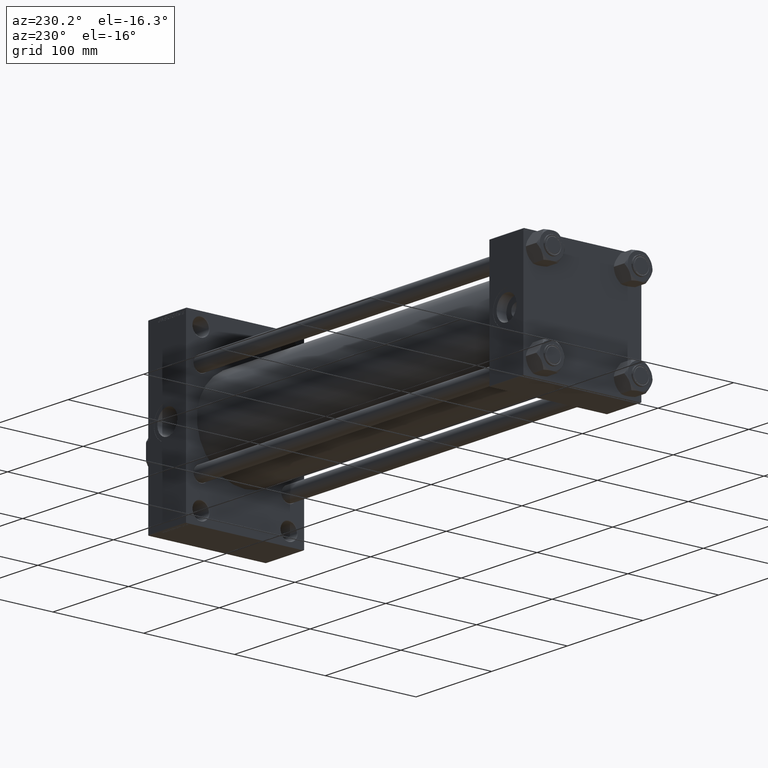
[diagram: clean part render]
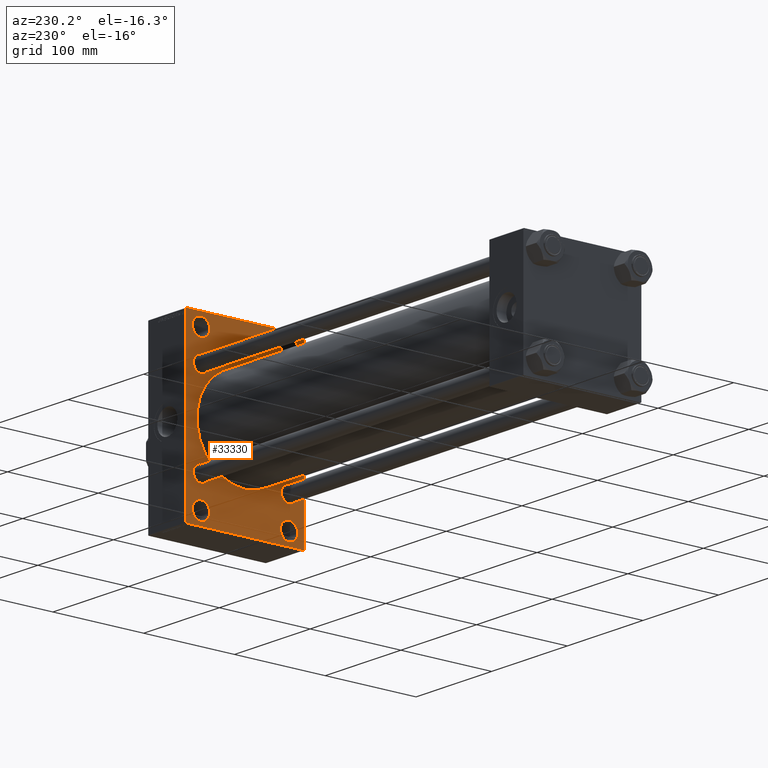
[diagram: same view with one face highlighted and labeled with its STEP entity id]
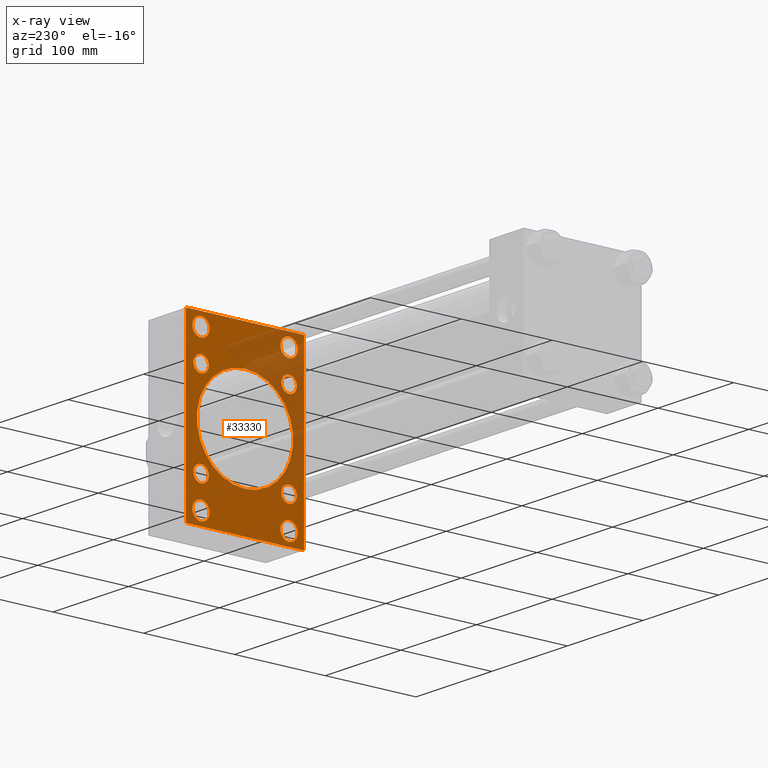
[diagram: x-ray of the same camera — body ghosted, the highlighted face saturated]
A machine part, auxiliary view. The second image highlights one B-rep face of the part: STEP entity #33330.
The next image is the same camera in x-ray: the body ghosted, the highlighted face saturated — about 27% of this face is hidden behind the body in this view.
In plain terms, the highlighted planar face has unit normal (-1, 0, 0).
Its self-contained STEP definition (entity closure, byte-faithful):
#363 = CIRCLE ( 'NONE', #31690, 8.500000000000007105 ) ;
#377 = CARTESIAN_POINT ( 'NONE',  ( 446.0000000000000000, -48.49999999999999289, -81.00000000000001421 ) ) ;
#555 = CARTESIAN_POINT ( 'NONE',  ( 446.0000000000000000, -48.49999999999999289, -71.50000000000001421 ) ) ;
#974 = LINE ( 'NONE', #47308, #1864 ) ;
#1215 = CARTESIAN_POINT ( 'NONE',  ( 446.0000000000000000, 64.99999999999998579, -95.00000000000001421 ) ) ;
#1239 = EDGE_LOOP ( 'NONE', ( #29864, #12027 ) ) ;
#1539 = VECTOR ( 'NONE', #22123, 1000.000000000000114 ) ;
#1543 = CIRCLE ( 'NONE', #44139, 8.500000000000007105 ) ;
#1642 = AXIS2_PLACEMENT_3D ( 'NONE', #22928, #12330, #27689 ) ;
#1864 = VECTOR ( 'NONE', #20335, 1000.000000000000000 ) ;
#1974 = VECTOR ( 'NONE', #21335, 999.9999999999998863 ) ;
#3095 = CARTESIAN_POINT ( 'NONE',  ( 446.0000000000000000, 48.45000000000000995, 48.45000000000001705 ) ) ;
#3371 = VERTEX_POINT ( 'NONE', #44056 ) ;
#3556 = CIRCLE ( 'NONE', #9980, 8.500000000000007105 ) ;
#3843 = DIRECTION ( 'NONE',  ( 0.000000000000000000, 0.000000000000000000, 1.000000000000000000 ) ) ;
#3962 = DIRECTION ( 'NONE',  ( -0.000000000000000000, 0.7071067811865376918, 0.7071067811865574537 ) ) ;
#4080 = ORIENTED_EDGE ( 'NONE', *, *, #13933, .T. ) ;
#4087 = DIRECTION ( 'NONE',  ( 1.000000000000000000, -0.000000000000000000, 0.000000000000000000 ) ) ;
#4114 = ORIENTED_EDGE ( 'NONE', *, *, #22924, .T. ) ;
#4131 = DIRECTION ( 'NONE',  ( -1.000000000000000000, 0.000000000000000000, -0.000000000000000000 ) ) ;
#4143 = EDGE_LOOP ( 'NONE', ( #32572, #20242 ) ) ;
#5193 = DIRECTION ( 'NONE',  ( 1.000000000000000000, -0.000000000000000000, 0.000000000000000000 ) ) ;
#5267 = EDGE_LOOP ( 'NONE', ( #30602, #32995 ) ) ;
#5311 = CARTESIAN_POINT ( 'NONE',  ( 446.0000000000000000, 48.45000000000000995, -48.45000000000001705 ) ) ;
#5450 = DIRECTION ( 'NONE',  ( 1.000000000000000000, -0.000000000000000000, 0.000000000000000000 ) ) ;
#5559 = DIRECTION ( 'NONE',  ( 1.000000000000000000, -0.000000000000000000, 0.000000000000000000 ) ) ;
#5606 = DIRECTION ( 'NONE',  ( 1.000000000000000000, -0.000000000000000000, 0.000000000000000000 ) ) ;
#5916 = DIRECTION ( 'NONE',  ( 0.000000000000000000, -0.7071067811865474617, 0.7071067811865474617 ) ) ;
#5952 = ORIENTED_EDGE ( 'NONE', *, *, #32010, .T. ) ;
#6209 = ORIENTED_EDGE ( 'NONE', *, *, #17293, .T. ) ;
#6383 = DIRECTION ( 'NONE',  ( 0.000000000000000000, 0.000000000000000000, -1.000000000000000000 ) ) ;
#6403 = CARTESIAN_POINT ( 'NONE',  ( 446.0000000000000000, 48.50000000000000711, -90.50000000000002842 ) ) ;
#6409 = EDGE_CURVE ( 'NONE', #36472, #10438, #49278, .T. ) ;
#6695 = VERTEX_POINT ( 'NONE', #555 ) ;
#6754 = EDGE_CURVE ( 'NONE', #15942, #41523, #363, .T. ) ;
#6821 = EDGE_CURVE ( 'NONE', #48066, #22252, #3556, .T. ) ;
#6855 = CARTESIAN_POINT ( 'NONE',  ( 446.0000000000000000, 48.50000000000000711, 81.00000000000000000 ) ) ;
#7003 = EDGE_LOOP ( 'NONE', ( #22774, #20010 ) ) ;
#8236 = EDGE_LOOP ( 'NONE', ( #33536, #42073 ) ) ;
#8626 = CARTESIAN_POINT ( 'NONE',  ( 446.0000000000000000, 48.50000000000000711, 71.50000000000000000 ) ) ;
#8656 = CIRCLE ( 'NONE', #29567, 9.500000000000008882 ) ;
#9215 = DIRECTION ( 'NONE',  ( 0.000000000000000000, 0.000000000000000000, 1.000000000000000000 ) ) ;
#9254 = CARTESIAN_POINT ( 'NONE',  ( 446.0000000000000000, 48.45000000000000995, 39.95000000000000284 ) ) ;
#9676 = EDGE_CURVE ( 'NONE', #24340, #31278, #12250, .T. ) ;
#9876 = EDGE_CURVE ( 'NONE', #43199, #15162, #36660, .T. ) ;
#9980 = AXIS2_PLACEMENT_3D ( 'NONE', #5311, #32755, #13621 ) ;
#10046 = EDGE_CURVE ( 'NONE', #41334, #6695, #39867, .T. ) ;
#10096 = CIRCLE ( 'NONE', #18113, 9.500000000000008882 ) ;
#10438 = VERTEX_POINT ( 'NONE', #46072 ) ;
#11113 = CARTESIAN_POINT ( 'NONE',  ( 446.0000000000000000, -48.50000000000000000, 90.50000000000001421 ) ) ;
#11131 = EDGE_CURVE ( 'NONE', #39844, #3371, #13488, .T. ) ;
#11635 = DIRECTION ( 'NONE',  ( 1.000000000000000000, -0.000000000000000000, 0.000000000000000000 ) ) ;
#11694 = FACE_BOUND ( 'NONE', #5267, .T. ) ;
#12027 = ORIENTED_EDGE ( 'NONE', *, *, #10046, .T. ) ;
#12250 = LINE ( 'NONE', #46275, #45523 ) ;
#12330 = DIRECTION ( 'NONE',  ( 1.000000000000000000, -0.000000000000000000, 0.000000000000000000 ) ) ;
#12553 = EDGE_CURVE ( 'NONE', #44348, #36478, #37567, .T. ) ;
#13488 = LINE ( 'NONE', #17257, #27887 ) ;
#13549 = VECTOR ( 'NONE', #16571, 1000.000000000000000 ) ;
#13609 = EDGE_CURVE ( 'NONE', #26139, #27326, #27132, .T. ) ;
#13621 = DIRECTION ( 'NONE',  ( 0.000000000000000000, 0.000000000000000000, 1.000000000000000000 ) ) ;
#13854 = CARTESIAN_POINT ( 'NONE',  ( 446.0000000000000000, -48.44999999999999574, -39.95000000000001705 ) ) ;
#13933 = EDGE_CURVE ( 'NONE', #22252, #48066, #45671, .T. ) ;
#13984 = CIRCLE ( 'NONE', #36523, 8.500000000000007105 ) ;
#14275 = CARTESIAN_POINT ( 'NONE',  ( 446.0000000000000000, 64.99999999999997158, 94.99999999999997158 ) ) ;
#14753 = ORIENTED_EDGE ( 'NONE', *, *, #6821, .T. ) ;
#14782 = CARTESIAN_POINT ( 'NONE',  ( 446.0000000000000000, 79.74999999999913314, -79.75000000000135003 ) ) ;
#14872 = DIRECTION ( 'NONE',  ( 0.000000000000000000, 0.000000000000000000, 1.000000000000000000 ) ) ;
#14940 = ORIENTED_EDGE ( 'NONE', *, *, #6754, .T. ) ;
#14975 = EDGE_CURVE ( 'NONE', #31518, #38144, #44110, .T. ) ;
#15162 = VERTEX_POINT ( 'NONE', #9254 ) ;
#15253 = CARTESIAN_POINT ( 'NONE',  ( 446.0000000000000000, -64.50000000000007105, -95.00000000000002842 ) ) ;
#15255 = EDGE_CURVE ( 'NONE', #10438, #39844, #39491, .T. ) ;
#15444 = VECTOR ( 'NONE', #6383, 1000.000000000000000 ) ;
#15473 = DIRECTION ( 'NONE',  ( -0.000000000000000000, 0.000000000000000000, 1.000000000000000000 ) ) ;
#15942 = VERTEX_POINT ( 'NONE', #13854 ) ;
#15969 = FACE_BOUND ( 'NONE', #19917, .T. ) ;
#16039 = CARTESIAN_POINT ( 'NONE',  ( 446.0000000000000000, 64.99999999999998579, -94.50000000000008527 ) ) ;
#16121 = ORIENTED_EDGE ( 'NONE', *, *, #14975, .T. ) ;
#16571 = DIRECTION ( 'NONE',  ( 0.000000000000000000, -1.000000000000000000, -1.067522139062650425E-16 ) ) ;
#16679 = AXIS2_PLACEMENT_3D ( 'NONE', #26222, #21189, #21451 ) ;
#17257 = CARTESIAN_POINT ( 'NONE',  ( 446.0000000000000000, -79.75000000000004263, -79.75000000000004263 ) ) ;
#17293 = EDGE_CURVE ( 'NONE', #38144, #31518, #17532, .T. ) ;
#17532 = CIRCLE ( 'NONE', #45704, 9.500000000000008882 ) ;
#17862 = DIRECTION ( 'NONE',  ( 0.000000000000000000, 0.000000000000000000, 1.000000000000000000 ) ) ;
#18113 = AXIS2_PLACEMENT_3D ( 'NONE', #28510, #5606, #20954 ) ;
#18452 = DIRECTION ( 'NONE',  ( 0.000000000000000000, 0.000000000000000000, 1.000000000000000000 ) ) ;
#18992 = FACE_BOUND ( 'NONE', #45470, .T. ) ;
#19305 = CARTESIAN_POINT ( 'NONE',  ( 446.0000000000000000, -48.50000000000000000, 81.00000000000000000 ) ) ;
#19533 = ORIENTED_EDGE ( 'NONE', *, *, #24055, .T. ) ;
#19713 = EDGE_CURVE ( 'NONE', #24340, #3371, #40646, .T. ) ;
#19917 = EDGE_LOOP ( 'NONE', ( #6209, #16121 ) ) ;
#19991 = DIRECTION ( 'NONE',  ( 0.000000000000000000, 0.000000000000000000, 1.000000000000000000 ) ) ;
#20010 = ORIENTED_EDGE ( 'NONE', *, *, #47264, .T. ) ;
#20048 = CARTESIAN_POINT ( 'NONE',  ( 446.0000000000000000, -48.44999999999999574, 39.95000000000001705 ) ) ;
#20242 = ORIENTED_EDGE ( 'NONE', *, *, #49027, .T. ) ;
#20335 = DIRECTION ( 'NONE',  ( 0.000000000000000000, 7.304098846218135653E-17, -1.000000000000000000 ) ) ;
#20550 = EDGE_LOOP ( 'NONE', ( #14940, #19533 ) ) ;
#20655 = CARTESIAN_POINT ( 'NONE',  ( 446.0000000000000000, -48.44999999999999574, 48.45000000000003126 ) ) ;
#20954 = DIRECTION ( 'NONE',  ( 0.000000000000000000, 0.000000000000000000, 1.000000000000000000 ) ) ;
#21059 = VERTEX_POINT ( 'NONE', #6403 ) ;
#21189 = DIRECTION ( 'NONE',  ( 1.000000000000000000, 0.000000000000000000, 0.000000000000000000 ) ) ;
#21335 = DIRECTION ( 'NONE',  ( -0.000000000000000000, -0.7071067811865574537, -0.7071067811865376918 ) ) ;
#21438 = EDGE_CURVE ( 'NONE', #44505, #31278, #48280, .T. ) ;
#21451 = DIRECTION ( 'NONE',  ( 0.000000000000000000, 0.000000000000000000, -1.000000000000000000 ) ) ;
#21853 = DIRECTION ( 'NONE',  ( 1.000000000000000000, 0.000000000000000000, 0.000000000000000000 ) ) ;
#22070 = DIRECTION ( 'NONE',  ( 0.000000000000000000, -1.000000000000000000, 0.000000000000000000 ) ) ;
#22074 = VERTEX_POINT ( 'NONE', #29009 ) ;
#22123 = DIRECTION ( 'NONE',  ( 0.000000000000000000, 0.7071067811865474617, -0.7071067811865474617 ) ) ;
#22252 = VERTEX_POINT ( 'NONE', #22820 ) ;
#22429 = AXIS2_PLACEMENT_3D ( 'NONE', #38087, #42124, #3843 ) ;
#22494 = CARTESIAN_POINT ( 'NONE',  ( 446.0000000000000000, -65.00000000000001421, 94.99999999999997158 ) ) ;
#22774 = ORIENTED_EDGE ( 'NONE', *, *, #12553, .T. ) ;
#22820 = CARTESIAN_POINT ( 'NONE',  ( 446.0000000000000000, 48.45000000000000995, -39.95000000000000284 ) ) ;
#22924 = EDGE_CURVE ( 'NONE', #38214, #36472, #974, .T. ) ;
#22928 = CARTESIAN_POINT ( 'NONE',  ( 446.0000000000000000, 48.50000000000000711, -81.00000000000001421 ) ) ;
#23033 = CARTESIAN_POINT ( 'NONE',  ( 446.0000000000000000, 48.50000000000000711, -81.00000000000001421 ) ) ;
#23035 = DIRECTION ( 'NONE',  ( 0.000000000000000000, 0.000000000000000000, 1.000000000000000000 ) ) ;
#23065 = AXIS2_PLACEMENT_3D ( 'NONE', #42065, #37277, #14872 ) ;
#23426 = EDGE_LOOP ( 'NONE', ( #32168, #5952 ) ) ;
#23503 = FACE_BOUND ( 'NONE', #7003, .T. ) ;
#23932 = AXIS2_PLACEMENT_3D ( 'NONE', #48838, #44561, #17862 ) ;
#24055 = EDGE_CURVE ( 'NONE', #41523, #15942, #34088, .T. ) ;
#24340 = VERTEX_POINT ( 'NONE', #43660 ) ;
#24417 = CARTESIAN_POINT ( 'NONE',  ( 446.0000000000000000, -48.50000000000000000, 81.00000000000000000 ) ) ;
#25633 = DIRECTION ( 'NONE',  ( 0.000000000000000000, 0.000000000000000000, -1.000000000000000000 ) ) ;
#26091 = CARTESIAN_POINT ( 'NONE',  ( 446.0000000000000000, -2.602085213965210642E-15, 53.00000000000000711 ) ) ;
#26139 = VERTEX_POINT ( 'NONE', #26091 ) ;
#26222 = CARTESIAN_POINT ( 'NONE',  ( 446.0000000000000000, -2.602085213965210642E-15, 0.000000000000000000 ) ) ;
#26774 = VECTOR ( 'NONE', #22070, 1000.000000000000000 ) ;
#26988 = DIRECTION ( 'NONE',  ( 0.000000000000000000, 0.000000000000000000, 1.000000000000000000 ) ) ;
#27028 = ORIENTED_EDGE ( 'NONE', *, *, #21438, .F. ) ;
#27048 = FACE_BOUND ( 'NONE', #1239, .T. ) ;
#27132 = CIRCLE ( 'NONE', #16679, 53.00000000000000711 ) ;
#27326 = VERTEX_POINT ( 'NONE', #49720 ) ;
#27689 = DIRECTION ( 'NONE',  ( 0.000000000000000000, 0.000000000000000000, 1.000000000000000000 ) ) ;
#27728 = EDGE_CURVE ( 'NONE', #39127, #41158, #39873, .T. ) ;
#27887 = VECTOR ( 'NONE', #5916, 1000.000000000000114 ) ;
#28448 = DIRECTION ( 'NONE',  ( 0.000000000000000000, 0.000000000000000000, 1.000000000000000000 ) ) ;
#28510 = CARTESIAN_POINT ( 'NONE',  ( 446.0000000000000000, 48.50000000000000711, 81.00000000000000000 ) ) ;
#29009 = CARTESIAN_POINT ( 'NONE',  ( 446.0000000000000000, 48.50000000000000711, -71.50000000000001421 ) ) ;
#29567 = AXIS2_PLACEMENT_3D ( 'NONE', #23033, #39147, #19991 ) ;
#29577 = ORIENTED_EDGE ( 'NONE', *, *, #43100, .T. ) ;
#29678 = CIRCLE ( 'NONE', #22429, 9.500000000000008882 ) ;
#29864 = ORIENTED_EDGE ( 'NONE', *, *, #39297, .T. ) ;
#30088 = DIRECTION ( 'NONE',  ( 1.000000000000000000, -0.000000000000000000, 0.000000000000000000 ) ) ;
#30267 = DIRECTION ( 'NONE',  ( 0.000000000000000000, 0.000000000000000000, 1.000000000000000000 ) ) ;
#30382 = DIRECTION ( 'NONE',  ( 1.000000000000000000, -0.000000000000000000, 0.000000000000000000 ) ) ;
#30602 = ORIENTED_EDGE ( 'NONE', *, *, #42936, .T. ) ;
#30615 = CARTESIAN_POINT ( 'NONE',  ( 446.0000000000000000, -48.44999999999999574, 56.95000000000003837 ) ) ;
#30753 = DIRECTION ( 'NONE',  ( 1.000000000000000000, -0.000000000000000000, 0.000000000000000000 ) ) ;
#31278 = VERTEX_POINT ( 'NONE', #39234 ) ;
#31316 = PLANE ( 'NONE',  #40740 ) ;
#31518 = VERTEX_POINT ( 'NONE', #49265 ) ;
#31690 = AXIS2_PLACEMENT_3D ( 'NONE', #46140, #11635, #26988 ) ;
#31738 = AXIS2_PLACEMENT_3D ( 'NONE', #45800, #21853, #25633 ) ;
#31890 = CARTESIAN_POINT ( 'NONE',  ( 446.0000000000000000, -48.44999999999999574, -48.45000000000003126 ) ) ;
#31910 = EDGE_LOOP ( 'NONE', ( #44862, #42275, #35986, #49552, #27028, #29577, #4114, #35237 ) ) ;
#32010 = EDGE_CURVE ( 'NONE', #41158, #39127, #10096, .T. ) ;
#32168 = ORIENTED_EDGE ( 'NONE', *, *, #27728, .T. ) ;
#32572 = ORIENTED_EDGE ( 'NONE', *, *, #13609, .T. ) ;
#32599 = AXIS2_PLACEMENT_3D ( 'NONE', #6855, #30753, #30267 ) ;
#32755 = DIRECTION ( 'NONE',  ( 1.000000000000000000, -0.000000000000000000, 0.000000000000000000 ) ) ;
#32995 = ORIENTED_EDGE ( 'NONE', *, *, #36664, .T. ) ;
#33330 = ADVANCED_FACE ( 'NONE', ( #15969, #27048, #11694, #34607, #23503, #34845, #18992, #49466, #38866, #42169 ), #31316, .T. ) ;
#33536 = ORIENTED_EDGE ( 'NONE', *, *, #9876, .T. ) ;
#34088 = CIRCLE ( 'NONE', #34870, 8.500000000000007105 ) ;
#34607 = FACE_BOUND ( 'NONE', #23426, .T. ) ;
#34845 = FACE_BOUND ( 'NONE', #8236, .T. ) ;
#34870 = AXIS2_PLACEMENT_3D ( 'NONE', #31890, #5193, #43240 ) ;
#35040 = AXIS2_PLACEMENT_3D ( 'NONE', #377, #30088, #23035 ) ;
#35237 = ORIENTED_EDGE ( 'NONE', *, *, #6409, .T. ) ;
#35281 = DIRECTION ( 'NONE',  ( 0.000000000000000000, 0.000000000000000000, 1.000000000000000000 ) ) ;
#35588 = CARTESIAN_POINT ( 'NONE',  ( 446.0000000000000000, 48.50000000000000711, 90.50000000000001421 ) ) ;
#35986 = ORIENTED_EDGE ( 'NONE', *, *, #19713, .F. ) ;
#36472 = VERTEX_POINT ( 'NONE', #16039 ) ;
#36478 = VERTEX_POINT ( 'NONE', #20048 ) ;
#36523 = AXIS2_PLACEMENT_3D ( 'NONE', #20655, #5559, #35281 ) ;
#36660 = CIRCLE ( 'NONE', #47092, 8.500000000000007105 ) ;
#36664 = EDGE_CURVE ( 'NONE', #21059, #22074, #8656, .T. ) ;
#37016 = CIRCLE ( 'NONE', #1642, 9.500000000000008882 ) ;
#37157 = CARTESIAN_POINT ( 'NONE',  ( 446.0000000000000000, 48.45000000000000995, -56.95000000000002416 ) ) ;
#37277 = DIRECTION ( 'NONE',  ( 1.000000000000000000, -0.000000000000000000, 0.000000000000000000 ) ) ;
#37567 = CIRCLE ( 'NONE', #23065, 8.500000000000007105 ) ;
#38087 = CARTESIAN_POINT ( 'NONE',  ( 446.0000000000000000, -48.49999999999999289, -81.00000000000001421 ) ) ;
#38144 = VERTEX_POINT ( 'NONE', #11113 ) ;
#38214 = VERTEX_POINT ( 'NONE', #38295 ) ;
#38295 = CARTESIAN_POINT ( 'NONE',  ( 446.0000000000000000, 64.99999999999997158, 94.50000000000002842 ) ) ;
#38866 = FACE_BOUND ( 'NONE', #4143, .T. ) ;
#38934 = DIRECTION ( 'NONE',  ( 0.000000000000000000, 0.000000000000000000, 1.000000000000000000 ) ) ;
#38975 = CARTESIAN_POINT ( 'NONE',  ( 446.0000000000000000, 48.45000000000000995, 56.95000000000002416 ) ) ;
#39127 = VERTEX_POINT ( 'NONE', #35588 ) ;
#39147 = DIRECTION ( 'NONE',  ( 1.000000000000000000, -0.000000000000000000, 0.000000000000000000 ) ) ;
#39234 = CARTESIAN_POINT ( 'NONE',  ( 446.0000000000000000, -64.50000000000008527, 94.99999999999997158 ) ) ;
#39289 = AXIS2_PLACEMENT_3D ( 'NONE', #24417, #39805, #28448 ) ;
#39293 = EDGE_CURVE ( 'NONE', #15162, #43199, #1543, .T. ) ;
#39297 = EDGE_CURVE ( 'NONE', #6695, #41334, #29678, .T. ) ;
#39491 = LINE ( 'NONE', #1215, #13549 ) ;
#39805 = DIRECTION ( 'NONE',  ( 1.000000000000000000, -0.000000000000000000, 0.000000000000000000 ) ) ;
#39844 = VERTEX_POINT ( 'NONE', #15253 ) ;
#39867 = CIRCLE ( 'NONE', #35040, 9.500000000000008882 ) ;
#39873 = CIRCLE ( 'NONE', #32599, 9.500000000000008882 ) ;
#40646 = LINE ( 'NONE', #22494, #15444 ) ;
#40740 = AXIS2_PLACEMENT_3D ( 'NONE', #46690, #4131, #15473 ) ;
#41158 = VERTEX_POINT ( 'NONE', #8626 ) ;
#41270 = CARTESIAN_POINT ( 'NONE',  ( 446.0000000000000000, 79.74999999999998579, 79.74999999999998579 ) ) ;
#41334 = VERTEX_POINT ( 'NONE', #41337 ) ;
#41337 = CARTESIAN_POINT ( 'NONE',  ( 446.0000000000000000, -48.49999999999999289, -90.50000000000002842 ) ) ;
#41523 = VERTEX_POINT ( 'NONE', #47340 ) ;
#41781 = LINE ( 'NONE', #41270, #1539 ) ;
#42065 = CARTESIAN_POINT ( 'NONE',  ( 446.0000000000000000, -48.44999999999999574, 48.45000000000003126 ) ) ;
#42073 = ORIENTED_EDGE ( 'NONE', *, *, #39293, .T. ) ;
#42124 = DIRECTION ( 'NONE',  ( 1.000000000000000000, -0.000000000000000000, 0.000000000000000000 ) ) ;
#42169 = FACE_OUTER_BOUND ( 'NONE', #31910, .T. ) ;
#42275 = ORIENTED_EDGE ( 'NONE', *, *, #11131, .T. ) ;
#42936 = EDGE_CURVE ( 'NONE', #22074, #21059, #37016, .T. ) ;
#43100 = EDGE_CURVE ( 'NONE', #44505, #38214, #41781, .T. ) ;
#43199 = VERTEX_POINT ( 'NONE', #38975 ) ;
#43240 = DIRECTION ( 'NONE',  ( 0.000000000000000000, 0.000000000000000000, 1.000000000000000000 ) ) ;
#43660 = CARTESIAN_POINT ( 'NONE',  ( 446.0000000000000000, -65.00000000000001421, 94.50000000000002842 ) ) ;
#43720 = CARTESIAN_POINT ( 'NONE',  ( 446.0000000000000000, 48.45000000000000995, 48.45000000000001705 ) ) ;
#44056 = CARTESIAN_POINT ( 'NONE',  ( 446.0000000000000000, -65.00000000000001421, -94.50000000000008527 ) ) ;
#44110 = CIRCLE ( 'NONE', #39289, 9.500000000000008882 ) ;
#44139 = AXIS2_PLACEMENT_3D ( 'NONE', #3095, #4087, #18452 ) ;
#44348 = VERTEX_POINT ( 'NONE', #30615 ) ;
#44505 = VERTEX_POINT ( 'NONE', #44842 ) ;
#44561 = DIRECTION ( 'NONE',  ( 1.000000000000000000, -0.000000000000000000, 0.000000000000000000 ) ) ;
#44842 = CARTESIAN_POINT ( 'NONE',  ( 446.0000000000000000, 64.50000000000002842, 94.99999999999997158 ) ) ;
#44862 = ORIENTED_EDGE ( 'NONE', *, *, #15255, .T. ) ;
#45470 = EDGE_LOOP ( 'NONE', ( #4080, #14753 ) ) ;
#45523 = VECTOR ( 'NONE', #3962, 999.9999999999998863 ) ;
#45671 = CIRCLE ( 'NONE', #23932, 8.500000000000007105 ) ;
#45704 = AXIS2_PLACEMENT_3D ( 'NONE', #19305, #30382, #38934 ) ;
#45800 = CARTESIAN_POINT ( 'NONE',  ( 446.0000000000000000, -2.602085213965210642E-15, 0.000000000000000000 ) ) ;
#46072 = CARTESIAN_POINT ( 'NONE',  ( 446.0000000000000000, 64.50000000000004263, -95.00000000000001421 ) ) ;
#46140 = CARTESIAN_POINT ( 'NONE',  ( 446.0000000000000000, -48.44999999999999574, -48.45000000000003126 ) ) ;
#46275 = CARTESIAN_POINT ( 'NONE',  ( 446.0000000000000000, -79.75000000000093792, 79.74999999999870681 ) ) ;
#46690 = CARTESIAN_POINT ( 'NONE',  ( 446.0000000000000000, 0.000000000000000000, 0.000000000000000000 ) ) ;
#47026 = CIRCLE ( 'NONE', #31738, 53.00000000000000711 ) ;
#47092 = AXIS2_PLACEMENT_3D ( 'NONE', #43720, #5450, #9215 ) ;
#47264 = EDGE_CURVE ( 'NONE', #36478, #44348, #13984, .T. ) ;
#47308 = CARTESIAN_POINT ( 'NONE',  ( 446.0000000000000000, 64.99999999999997158, 94.99999999999997158 ) ) ;
#47340 = CARTESIAN_POINT ( 'NONE',  ( 446.0000000000000000, -48.44999999999999574, -56.95000000000003837 ) ) ;
#48066 = VERTEX_POINT ( 'NONE', #37157 ) ;
#48280 = LINE ( 'NONE', #14275, #26774 ) ;
#48838 = CARTESIAN_POINT ( 'NONE',  ( 446.0000000000000000, 48.45000000000000995, -48.45000000000001705 ) ) ;
#49027 = EDGE_CURVE ( 'NONE', #27326, #26139, #47026, .T. ) ;
#49265 = CARTESIAN_POINT ( 'NONE',  ( 446.0000000000000000, -48.50000000000000000, 71.50000000000000000 ) ) ;
#49278 = LINE ( 'NONE', #14782, #1974 ) ;
#49466 = FACE_BOUND ( 'NONE', #20550, .T. ) ;
#49552 = ORIENTED_EDGE ( 'NONE', *, *, #9676, .T. ) ;
#49720 = CARTESIAN_POINT ( 'NONE',  ( 446.0000000000000000, 3.888542821515760888E-15, -53.00000000000000711 ) ) ;